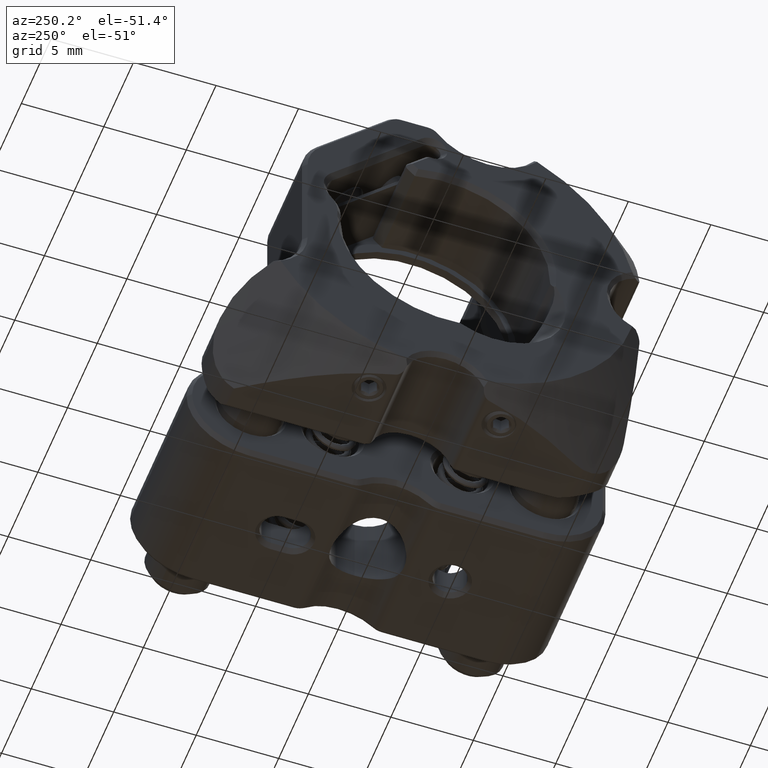
[diagram: clean part render]
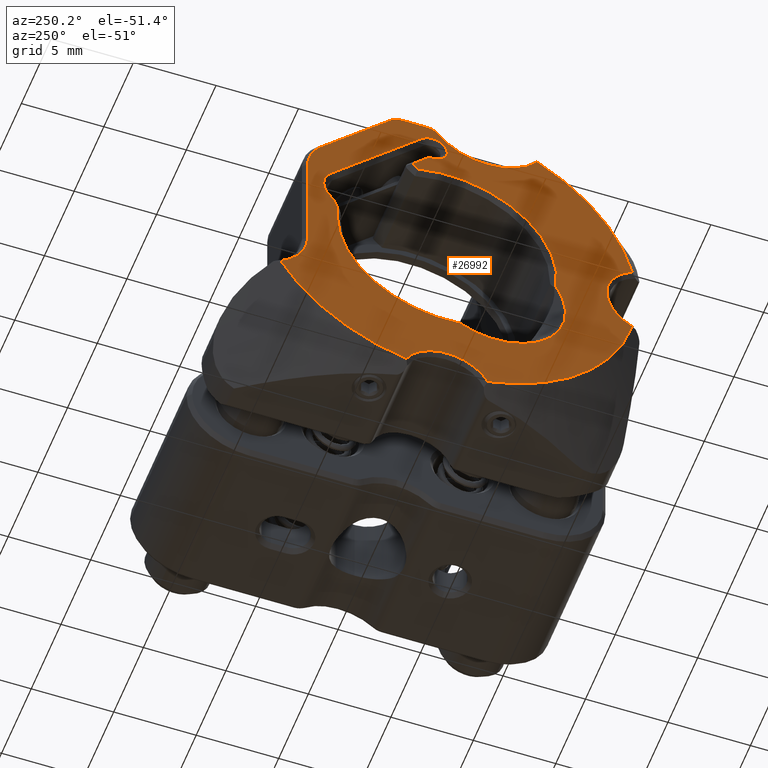
[diagram: same view with one face highlighted and labeled with its STEP entity id]
A machine part, auxiliary view. The second image highlights one B-rep face of the part: STEP entity #26992.
In plain terms, the highlighted planar face has unit normal (-1, 0, -0).
Its self-contained STEP definition (entity closure, byte-faithful):
#552 = VECTOR ( 'NONE', #32448, 999.9999999999998863 ) ;
#1292 = DIRECTION ( 'NONE',  ( 0.000000000000000000, 1.000000000000000000, 7.016786371681082643E-17 ) ) ;
#1924 = CARTESIAN_POINT ( 'NONE',  ( -13.35000000000000142, -4.163336342344337027E-13, -2.924390868570691153E-13 ) ) ;
#2036 = VERTEX_POINT ( 'NONE', #88483 ) ;
#2087 = DIRECTION ( 'NONE',  ( -1.000000000000000000, -0.000000000000000000, -0.000000000000000000 ) ) ;
#2227 = EDGE_LOOP ( 'NONE', ( #34006, #71994, #61145, #86561, #43013, #17967, #60966, #5543, #28495, #45781, #46060, #22641, #23483, #71832 ) ) ;
#2266 = CARTESIAN_POINT ( 'NONE',  ( -13.35000000000000142, 7.475052301025905344, 2.722361107567926375 ) ) ;
#2378 = EDGE_CURVE ( 'NONE', #71379, #69253, #29126, .T. ) ;
#2423 = CARTESIAN_POINT ( 'NONE',  ( -13.35000000000000142, 3.346120112891388221, 10.23033008588961401 ) ) ;
#2605 = CARTESIAN_POINT ( 'NONE',  ( -13.35000000000000142, 5.699999999999583622, 3.987362902255418451 ) ) ;
#2804 = EDGE_CURVE ( 'NONE', #17757, #47301, #83977, .T. ) ;
#4400 = LINE ( 'NONE', #13422, #18017 ) ;
#4744 = AXIS2_PLACEMENT_3D ( 'NONE', #6212, #72650, #87318 ) ;
#5321 = AXIS2_PLACEMENT_3D ( 'NONE', #41388, #63710, #34063 ) ;
#5543 = ORIENTED_EDGE ( 'NONE', *, *, #2804, .F. ) ;
#6212 = CARTESIAN_POINT ( 'NONE',  ( -13.35000000000000142, 1.170090846822884778, 9.699999999999707967 ) ) ;
#6549 = AXIS2_PLACEMENT_3D ( 'NONE', #27533, #71626, #64255 ) ;
#6595 = CARTESIAN_POINT ( 'NONE',  ( -13.35000000000000142, 5.975052301025907120, 2.722361107567926375 ) ) ;
#7039 = VERTEX_POINT ( 'NONE', #69120 ) ;
#7332 = CARTESIAN_POINT ( 'NONE',  ( -13.35000000000000142, 8.449999999999572964, -2.686775032291957466 ) ) ;
#8825 = CARTESIAN_POINT ( 'NONE',  ( -13.35000000000000142, 8.331384657197483889, 0.5572519123403809616 ) ) ;
#9056 = EDGE_LOOP ( 'NONE', ( #64886, #23082, #60044, #11348, #11326, #62381, #19197, #26711, #62474, #51340, #92594, #91398 ) ) ;
#9076 = DIRECTION ( 'NONE',  ( -0.000000000000000000, 0.7071067811865489050, -0.7071067811865460184 ) ) ;
#9279 = CIRCLE ( 'NONE', #34989, 1.700000000000001954 ) ;
#9394 = CIRCLE ( 'NONE', #57607, 2.749999999999992006 ) ;
#10002 = VERTEX_POINT ( 'NONE', #2266 ) ;
#11326 = ORIENTED_EDGE ( 'NONE', *, *, #15470, .F. ) ;
#11348 = ORIENTED_EDGE ( 'NONE', *, *, #26890, .F. ) ;
#12281 = AXIS2_PLACEMENT_3D ( 'NONE', #75169, #75783, #60431 ) ;
#12336 = EDGE_CURVE ( 'NONE', #2036, #18342, #9279, .T. ) ;
#12452 = CARTESIAN_POINT ( 'NONE',  ( -13.35000000000000142, -12.44000000000041339, -2.933119750817062679E-13 ) ) ;
#12485 = DIRECTION ( 'NONE',  ( 0.000000000000000000, 1.000000000000000000, -1.892425610156514607E-15 ) ) ;
#13422 = CARTESIAN_POINT ( 'NONE',  ( -13.35000000000000142, 0.9303300858894796299, 7.908504678941643107 ) ) ;
#14142 = VECTOR ( 'NONE', #21842, 1000.000000000000000 ) ;
#14553 = DIRECTION ( 'NONE',  ( 0.000000000000000000, 1.000000000000000000, 0.000000000000000000 ) ) ;
#15470 = EDGE_CURVE ( 'NONE', #27074, #84024, #49309, .T. ) ;
#15740 = LINE ( 'NONE', #74594, #56944 ) ;
#15823 = DIRECTION ( 'NONE',  ( 1.000000000000000000, 0.000000000000000000, 0.000000000000000000 ) ) ;
#15897 = AXIS2_PLACEMENT_3D ( 'NONE', #1924, #24253, #1292 ) ;
#16749 = VERTEX_POINT ( 'NONE', #93599 ) ;
#17218 = EDGE_CURVE ( 'NONE', #7039, #27630, #77959, .T. ) ;
#17232 = CARTESIAN_POINT ( 'NONE',  ( -13.35000000000000142, 7.644543648262582813, 5.931906550518421639 ) ) ;
#17752 = CARTESIAN_POINT ( 'NONE',  ( -13.35000000000000142, 1.170090846822884778, 10.44999999999970441 ) ) ;
#17757 = VERTEX_POINT ( 'NONE', #7332 ) ;
#17943 = VERTEX_POINT ( 'NONE', #22318 ) ;
#17967 = ORIENTED_EDGE ( 'NONE', *, *, #43775, .F. ) ;
#18017 = VECTOR ( 'NONE', #56604, 1000.000000000000000 ) ;
#18342 = VERTEX_POINT ( 'NONE', #52068 ) ;
#18834 = DIRECTION ( 'NONE',  ( 0.000000000000000000, 1.000000000000000000, 0.000000000000000000 ) ) ;
#19197 = ORIENTED_EDGE ( 'NONE', *, *, #78080, .F. ) ;
#19209 = DIRECTION ( 'NONE',  ( 1.000000000000000000, 0.000000000000000000, 0.000000000000000000 ) ) ;
#19211 = DIRECTION ( 'NONE',  ( -1.000000000000000000, -0.000000000000000000, -0.000000000000000000 ) ) ;
#19719 = AXIS2_PLACEMENT_3D ( 'NONE', #33545, #70270, #76975 ) ;
#21842 = DIRECTION ( 'NONE',  ( 0.000000000000000000, 1.210472715741059563E-16, 1.000000000000000000 ) ) ;
#22318 = CARTESIAN_POINT ( 'NONE',  ( -13.35000000000000142, 0.5654819106733870449, 10.14378827646514836 ) ) ;
#22641 = ORIENTED_EDGE ( 'NONE', *, *, #32747, .F. ) ;
#22763 = AXIS2_PLACEMENT_3D ( 'NONE', #6595, #35389, #49765 ) ;
#23082 = ORIENTED_EDGE ( 'NONE', *, *, #43052, .F. ) ;
#23483 = ORIENTED_EDGE ( 'NONE', *, *, #24508, .F. ) ;
#23596 = CIRCLE ( 'NONE', #85493, 6.649999999999996803 ) ;
#24253 = DIRECTION ( 'NONE',  ( 1.000000000000000000, 0.000000000000000000, 0.000000000000000000 ) ) ;
#24508 = EDGE_CURVE ( 'NONE', #31917, #38794, #80050, .T. ) ;
#25962 = CARTESIAN_POINT ( 'NONE',  ( -13.35000000000000142, -4.163336342344337027E-13, -2.924390868570691153E-13 ) ) ;
#26486 = DIRECTION ( 'NONE',  ( -1.000000000000000000, -0.000000000000000000, -0.000000000000000000 ) ) ;
#26711 = ORIENTED_EDGE ( 'NONE', *, *, #42849, .F. ) ;
#26857 = DIRECTION ( 'NONE',  ( 0.000000000000000000, 1.000000000000000000, 7.016786371681082643E-17 ) ) ;
#26890 = EDGE_CURVE ( 'NONE', #84024, #31750, #15740, .T. ) ;
#26992 = ADVANCED_FACE ( 'NONE', ( #50086, #93504 ), #69134, .T. ) ;
#26996 = DIRECTION ( 'NONE',  ( 0.000000000000000000, -1.000000000000000000, 1.276929532852381563E-16 ) ) ;
#27074 = VERTEX_POINT ( 'NONE', #84139 ) ;
#27533 = CARTESIAN_POINT ( 'NONE',  ( -13.35000000000000142, -4.163336342344337027E-13, -2.924390868570691153E-13 ) ) ;
#27630 = VERTEX_POINT ( 'NONE', #34327 ) ;
#27642 = CIRCLE ( 'NONE', #54545, 11.49999999999999822 ) ;
#28495 = ORIENTED_EDGE ( 'NONE', *, *, #31617, .F. ) ;
#29126 = CIRCLE ( 'NONE', #15897, 11.49999999999999822 ) ;
#30217 = VERTEX_POINT ( 'NONE', #33836 ) ;
#30379 = VECTOR ( 'NONE', #93794, 1000.000000000000114 ) ;
#31428 = CARTESIAN_POINT ( 'NONE',  ( -13.35000000000000142, 0.8838834764827475654, 8.662058069534912974 ) ) ;
#31617 = EDGE_CURVE ( 'NONE', #30217, #17757, #55107, .T. ) ;
#31750 = VERTEX_POINT ( 'NONE', #89598 ) ;
#31917 = VERTEX_POINT ( 'NONE', #51236 ) ;
#32448 = DIRECTION ( 'NONE',  ( 0.000000000000000000, -0.7071067811865477948, 0.7071067811865473507 ) ) ;
#32586 = VERTEX_POINT ( 'NONE', #62014 ) ;
#32747 = EDGE_CURVE ( 'NONE', #38794, #7039, #58993, .T. ) ;
#33238 = EDGE_CURVE ( 'NONE', #59467, #2036, #63530, .T. ) ;
#33282 = DIRECTION ( 'NONE',  ( -1.000000000000000000, -0.000000000000000000, -0.000000000000000000 ) ) ;
#33545 = CARTESIAN_POINT ( 'NONE',  ( -13.35000000000000142, 2.815790027001479512, 9.699999999999707967 ) ) ;
#33836 = CARTESIAN_POINT ( 'NONE',  ( -13.35000000000000142, 10.09310609471138598, -5.511733789008184559 ) ) ;
#34006 = ORIENTED_EDGE ( 'NONE', *, *, #2378, .F. ) ;
#34063 = DIRECTION ( 'NONE',  ( 0.000000000000000000, 1.000000000000000000, 7.016786371680556325E-17 ) ) ;
#34327 = CARTESIAN_POINT ( 'NONE',  ( -13.35000000000000142, 2.470255413680653156, -11.23155546623823042 ) ) ;
#34760 = EDGE_CURVE ( 'NONE', #78416, #65059, #82972, .T. ) ;
#34922 = EDGE_CURVE ( 'NONE', #27630, #30217, #27642, .T. ) ;
#34960 = CARTESIAN_POINT ( 'NONE',  ( -13.35000000000000142, -4.163336342344337027E-13, -2.924390868570691153E-13 ) ) ;
#34989 = AXIS2_PLACEMENT_3D ( 'NONE', #8825, #15823, #38867 ) ;
#35389 = DIRECTION ( 'NONE',  ( -1.000000000000000000, -0.000000000000000000, -0.000000000000000000 ) ) ;
#35423 = EDGE_CURVE ( 'NONE', #47301, #90870, #63118, .T. ) ;
#35817 = EDGE_CURVE ( 'NONE', #69253, #31917, #9394, .T. ) ;
#36651 = CARTESIAN_POINT ( 'NONE',  ( -13.35000000000000142, 8.449999999999580069, 3.987362902255418451 ) ) ;
#36968 = CARTESIAN_POINT ( 'NONE',  ( -13.35000000000000142, 3.346120112891388221, 10.23033008588961579 ) ) ;
#37149 = CARTESIAN_POINT ( 'NONE',  ( -13.35000000000000142, -6.603440663131069144, -0.7855389287063430093 ) ) ;
#37363 = VERTEX_POINT ( 'NONE', #87073 ) ;
#38051 = AXIS2_PLACEMENT_3D ( 'NONE', #2605, #91054, #61665 ) ;
#38440 = DIRECTION ( 'NONE',  ( 1.000000000000000000, 0.000000000000000000, 0.000000000000000000 ) ) ;
#38794 = VERTEX_POINT ( 'NONE', #85918 ) ;
#38867 = DIRECTION ( 'NONE',  ( 0.000000000000000000, 1.000000000000000000, 6.377659838150018832E-17 ) ) ;
#39291 = AXIS2_PLACEMENT_3D ( 'NONE', #31428, #75194, #90165 ) ;
#39479 = CARTESIAN_POINT ( 'NONE',  ( -13.35000000000000142, -11.23155546623836010, 2.470255413680762846 ) ) ;
#40351 = VERTEX_POINT ( 'NONE', #17752 ) ;
#40433 = AXIS2_PLACEMENT_3D ( 'NONE', #86472, #93486, #72407 ) ;
#41388 = CARTESIAN_POINT ( 'NONE',  ( -13.35000000000000142, -12.44000000000041339, -2.933119750817062679E-13 ) ) ;
#41514 = VERTEX_POINT ( 'NONE', #43314 ) ;
#42528 = CARTESIAN_POINT ( 'NONE',  ( -13.35000000000000142, -0.7855389287065237536, -6.603440663130931476 ) ) ;
#42716 = CARTESIAN_POINT ( 'NONE',  ( -13.35000000000000142, 2.085965004499878095, 6.752869760331243754 ) ) ;
#42849 = EDGE_CURVE ( 'NONE', #78416, #16749, #87516, .T. ) ;
#43013 = ORIENTED_EDGE ( 'NONE', *, *, #67167, .F. ) ;
#43052 = EDGE_CURVE ( 'NONE', #10002, #59467, #92037, .T. ) ;
#43314 = CARTESIAN_POINT ( 'NONE',  ( -13.35000000000000142, 6.649999999999582023, -2.919724705633523447E-13 ) ) ;
#43513 = VECTOR ( 'NONE', #26996, 1000.000000000000000 ) ;
#43775 = EDGE_CURVE ( 'NONE', #90870, #57485, #59933, .T. ) ;
#45256 = LINE ( 'NONE', #42716, #30379 ) ;
#45348 = AXIS2_PLACEMENT_3D ( 'NONE', #69408, #19209, #26857 ) ;
#45781 = ORIENTED_EDGE ( 'NONE', *, *, #34922, .F. ) ;
#45884 = DIRECTION ( 'NONE',  ( 0.000000000000000000, 1.000000000000000000, 1.334402673828311367E-16 ) ) ;
#45917 = AXIS2_PLACEMENT_3D ( 'NONE', #34960, #86049, #93653 ) ;
#46060 = ORIENTED_EDGE ( 'NONE', *, *, #17218, .F. ) ;
#47301 = VERTEX_POINT ( 'NONE', #36651 ) ;
#48133 = CARTESIAN_POINT ( 'NONE',  ( -13.35000000000000142, 1.170090846822884778, 10.44999999999970264 ) ) ;
#48370 = DIRECTION ( 'NONE',  ( 0.000000000000000000, 1.000000000000000000, 6.287416801617689154E-15 ) ) ;
#49309 = CIRCLE ( 'NONE', #39291, 0.8999999999999971356 ) ;
#49553 = EDGE_CURVE ( 'NONE', #31750, #10002, #70115, .T. ) ;
#49765 = DIRECTION ( 'NONE',  ( 0.000000000000000000, 1.000000000000000000, -1.734723475976810644E-15 ) ) ;
#50086 = FACE_BOUND ( 'NONE', #9056, .T. ) ;
#51236 = CARTESIAN_POINT ( 'NONE',  ( -13.35000000000000142, -9.690000000000420499, -2.931190134564850906E-13 ) ) ;
#51340 = ORIENTED_EDGE ( 'NONE', *, *, #87991, .F. ) ;
#51580 = CARTESIAN_POINT ( 'NONE',  ( -13.35000000000000142, 8.449999999999580069, 3.987362902255418451 ) ) ;
#52068 = CARTESIAN_POINT ( 'NONE',  ( -13.35000000000000142, 6.635174607229048505, 0.4437994271931778312 ) ) ;
#54545 = AXIS2_PLACEMENT_3D ( 'NONE', #82207, #38440, #89515 ) ;
#55107 = CIRCLE ( 'NONE', #67288, 3.250000000000004441 ) ;
#55607 = DIRECTION ( 'NONE',  ( 0.000000000000000000, 1.000000000000000000, 7.016786371680556325E-17 ) ) ;
#56604 = DIRECTION ( 'NONE',  ( 0.000000000000000000, -0.7071067811865489050, 0.7071067811865462405 ) ) ;
#56944 = VECTOR ( 'NONE', #9076, 1000.000000000000114 ) ;
#57485 = VERTEX_POINT ( 'NONE', #36968 ) ;
#57607 = AXIS2_PLACEMENT_3D ( 'NONE', #12452, #33282, #55607 ) ;
#58993 = CIRCLE ( 'NONE', #45348, 11.49999999999999822 ) ;
#59332 = EDGE_CURVE ( 'NONE', #40351, #17943, #87818, .T. ) ;
#59467 = VERTEX_POINT ( 'NONE', #94643 ) ;
#59933 = LINE ( 'NONE', #2423, #552 ) ;
#60044 = ORIENTED_EDGE ( 'NONE', *, *, #49553, .F. ) ;
#60150 = CIRCLE ( 'NONE', #71794, 3.750000000000003553 ) ;
#60431 = DIRECTION ( 'NONE',  ( 0.000000000000000000, 1.000000000000000000, 1.020425574104004369E-16 ) ) ;
#60966 = ORIENTED_EDGE ( 'NONE', *, *, #35423, .F. ) ;
#61145 = ORIENTED_EDGE ( 'NONE', *, *, #59332, .F. ) ;
#61433 = DIRECTION ( 'NONE',  ( -1.000000000000000000, 0.000000000000000000, -0.000000000000000000 ) ) ;
#61465 = CIRCLE ( 'NONE', #6549, 6.649999999999996803 ) ;
#61665 = DIRECTION ( 'NONE',  ( 0.000000000000000000, 1.000000000000000000, 0.000000000000000000 ) ) ;
#62014 = CARTESIAN_POINT ( 'NONE',  ( -13.35000000000000142, 2.085965004499878095, 6.752869760331243754 ) ) ;
#62381 = ORIENTED_EDGE ( 'NONE', *, *, #87856, .F. ) ;
#62474 = ORIENTED_EDGE ( 'NONE', *, *, #34760, .T. ) ;
#62943 = LINE ( 'NONE', #48133, #43513 ) ;
#62975 = CARTESIAN_POINT ( 'NONE',  ( -13.35000000000000142, -4.128641872824800885E-13, -12.44000000000028905 ) ) ;
#63118 = CIRCLE ( 'NONE', #38051, 2.749999999999995559 ) ;
#63530 = CIRCLE ( 'NONE', #40433, 1.700000000000001954 ) ;
#63710 = DIRECTION ( 'NONE',  ( -1.000000000000000000, -0.000000000000000000, -0.000000000000000000 ) ) ;
#64255 = DIRECTION ( 'NONE',  ( 0.000000000000000000, 1.000000000000000000, 7.016786371681226857E-17 ) ) ;
#64886 = ORIENTED_EDGE ( 'NONE', *, *, #33238, .F. ) ;
#65059 = VERTEX_POINT ( 'NONE', #42528 ) ;
#65433 = AXIS2_PLACEMENT_3D ( 'NONE', #76696, #26486, #18834 ) ;
#67167 = EDGE_CURVE ( 'NONE', #57485, #37363, #70640, .T. ) ;
#67288 = AXIS2_PLACEMENT_3D ( 'NONE', #82287, #2087, #45884 ) ;
#67913 = EDGE_CURVE ( 'NONE', #17943, #71379, #60150, .T. ) ;
#69120 = CARTESIAN_POINT ( 'NONE',  ( -13.35000000000000142, -2.470255413681482715, -11.23155546623823398 ) ) ;
#69134 = PLANE ( 'NONE',  #84952 ) ;
#69253 = VERTEX_POINT ( 'NONE', #39479 ) ;
#69408 = CARTESIAN_POINT ( 'NONE',  ( -13.35000000000000142, -4.163336342344337027E-13, -2.924390868570691153E-13 ) ) ;
#69774 = CARTESIAN_POINT ( 'NONE',  ( -13.35000000000000142, -4.163336342344337027E-13, -2.924390868570691153E-13 ) ) ;
#70115 = CIRCLE ( 'NONE', #22763, 1.499999999999996891 ) ;
#70270 = DIRECTION ( 'NONE',  ( 1.000000000000000000, 0.000000000000000000, 0.000000000000000000 ) ) ;
#70640 = CIRCLE ( 'NONE', #19719, 0.7499999999999954481 ) ;
#71379 = VERTEX_POINT ( 'NONE', #85636 ) ;
#71626 = DIRECTION ( 'NONE',  ( -1.000000000000000000, -0.000000000000000000, -0.000000000000000000 ) ) ;
#71794 = AXIS2_PLACEMENT_3D ( 'NONE', #72745, #81370, #14553 ) ;
#71832 = ORIENTED_EDGE ( 'NONE', *, *, #35817, .F. ) ;
#71994 = ORIENTED_EDGE ( 'NONE', *, *, #67913, .F. ) ;
#72407 = DIRECTION ( 'NONE',  ( 0.000000000000000000, 1.000000000000000000, 6.377659838150018832E-17 ) ) ;
#72650 = DIRECTION ( 'NONE',  ( 1.000000000000000000, 0.000000000000000000, 0.000000000000000000 ) ) ;
#72745 = CARTESIAN_POINT ( 'NONE',  ( -13.35000000000000142, -2.457562770074122493, 12.36272965879236274 ) ) ;
#72763 = EDGE_CURVE ( 'NONE', #18342, #41514, #23596, .T. ) ;
#74594 = CARTESIAN_POINT ( 'NONE',  ( -13.35000000000000142, 7.035712472805724538, 3.783021279347749122 ) ) ;
#74959 = CARTESIAN_POINT ( 'NONE',  ( -13.35000000000000142, 1.520279579550639415, 9.298454172602804491 ) ) ;
#75169 = CARTESIAN_POINT ( 'NONE',  ( -13.35000000000000142, -2.940000000000449365, -2.940000000000293934 ) ) ;
#75194 = DIRECTION ( 'NONE',  ( -1.000000000000000000, -0.000000000000000000, -0.000000000000000000 ) ) ;
#75783 = DIRECTION ( 'NONE',  ( 1.000000000000000000, 0.000000000000000000, 0.000000000000000000 ) ) ;
#76696 = CARTESIAN_POINT ( 'NONE',  ( -13.35000000000000142, 5.975052301025907120, 2.722361107567926375 ) ) ;
#76797 = DIRECTION ( 'NONE',  ( -1.000000000000000000, -0.000000000000000000, -0.000000000000000000 ) ) ;
#76975 = DIRECTION ( 'NONE',  ( 0.000000000000000000, 1.000000000000000000, 0.000000000000000000 ) ) ;
#77921 = AXIS2_PLACEMENT_3D ( 'NONE', #62975, #19211, #12485 ) ;
#77959 = CIRCLE ( 'NONE', #77921, 2.750000000000003109 ) ;
#78080 = EDGE_CURVE ( 'NONE', #16749, #32586, #45256, .T. ) ;
#78416 = VERTEX_POINT ( 'NONE', #37149 ) ;
#80050 = CIRCLE ( 'NONE', #5321, 2.749999999999992006 ) ;
#81370 = DIRECTION ( 'NONE',  ( -1.000000000000000000, -0.000000000000000000, -0.000000000000000000 ) ) ;
#82207 = CARTESIAN_POINT ( 'NONE',  ( -13.35000000000000142, -4.163336342344337027E-13, -2.924390868570691153E-13 ) ) ;
#82287 = CARTESIAN_POINT ( 'NONE',  ( -13.35000000000000142, 11.69999999999958185, -2.686775032291957466 ) ) ;
#82972 = CIRCLE ( 'NONE', #12281, 4.249999999999999112 ) ;
#83977 = LINE ( 'NONE', #51580, #14142 ) ;
#84024 = VERTEX_POINT ( 'NONE', #74959 ) ;
#84139 = CARTESIAN_POINT ( 'NONE',  ( -13.35000000000000142, 1.059480348102395553, 7.779354416728726740 ) ) ;
#84952 = AXIS2_PLACEMENT_3D ( 'NONE', #25962, #61433, #90823 ) ;
#85493 = AXIS2_PLACEMENT_3D ( 'NONE', #69774, #76797, #48370 ) ;
#85636 = CARTESIAN_POINT ( 'NONE',  ( -13.35000000000000142, -5.462770786900859044, 10.11969047598695859 ) ) ;
#85918 = CARTESIAN_POINT ( 'NONE',  ( -13.35000000000000142, -11.23155546623835654, -2.470255413681348600 ) ) ;
#86049 = DIRECTION ( 'NONE',  ( -1.000000000000000000, -0.000000000000000000, -0.000000000000000000 ) ) ;
#86472 = CARTESIAN_POINT ( 'NONE',  ( -13.35000000000000142, 8.331384657197483889, 0.5572519123403809616 ) ) ;
#86561 = ORIENTED_EDGE ( 'NONE', *, *, #93823, .F. ) ;
#87073 = CARTESIAN_POINT ( 'NONE',  ( -13.35000000000000142, 2.815790027001479512, 10.44999999999970441 ) ) ;
#87318 = DIRECTION ( 'NONE',  ( 0.000000000000000000, 1.000000000000000000, 0.000000000000000000 ) ) ;
#87516 = CIRCLE ( 'NONE', #45917, 6.650000000000002132 ) ;
#87818 = CIRCLE ( 'NONE', #4744, 0.7499999999999956701 ) ;
#87856 = EDGE_CURVE ( 'NONE', #32586, #27074, #4400, .T. ) ;
#87991 = EDGE_CURVE ( 'NONE', #41514, #65059, #61465, .T. ) ;
#88483 = CARTESIAN_POINT ( 'NONE',  ( -13.35000000000000142, 6.631384657197481935, 0.5572519123403808505 ) ) ;
#89515 = DIRECTION ( 'NONE',  ( 0.000000000000000000, 1.000000000000000000, 7.016786371681082643E-17 ) ) ;
#89598 = CARTESIAN_POINT ( 'NONE',  ( -13.35000000000000142, 7.035712472805724538, 3.783021279347749122 ) ) ;
#90165 = DIRECTION ( 'NONE',  ( 0.000000000000000000, 1.000000000000000000, 0.000000000000000000 ) ) ;
#90823 = DIRECTION ( 'NONE',  ( -0.000000000000000000, 1.000000000000000000, 7.016786371681204670E-17 ) ) ;
#90870 = VERTEX_POINT ( 'NONE', #17232 ) ;
#91054 = DIRECTION ( 'NONE',  ( 1.000000000000000000, 0.000000000000000000, 0.000000000000000000 ) ) ;
#91398 = ORIENTED_EDGE ( 'NONE', *, *, #12336, .F. ) ;
#92037 = CIRCLE ( 'NONE', #65433, 1.499999999999996891 ) ;
#92594 = ORIENTED_EDGE ( 'NONE', *, *, #72763, .F. ) ;
#93486 = DIRECTION ( 'NONE',  ( 1.000000000000000000, 0.000000000000000000, 0.000000000000000000 ) ) ;
#93504 = FACE_OUTER_BOUND ( 'NONE', #2227, .T. ) ;
#93599 = CARTESIAN_POINT ( 'NONE',  ( -13.35000000000000142, 1.748979495367335213, 6.415884251198695765 ) ) ;
#93653 = DIRECTION ( 'NONE',  ( 0.000000000000000000, 1.000000000000000000, 7.016786371681220694E-17 ) ) ;
#93794 = DIRECTION ( 'NONE',  ( 0.000000000000000000, 0.7071067811865445751, 0.7071067811865504593 ) ) ;
#93823 = EDGE_CURVE ( 'NONE', #37363, #40351, #62943, .T. ) ;
#94643 = CARTESIAN_POINT ( 'NONE',  ( -13.35000000000000142, 7.079583092981335035, 1.707466172305016627 ) ) ;